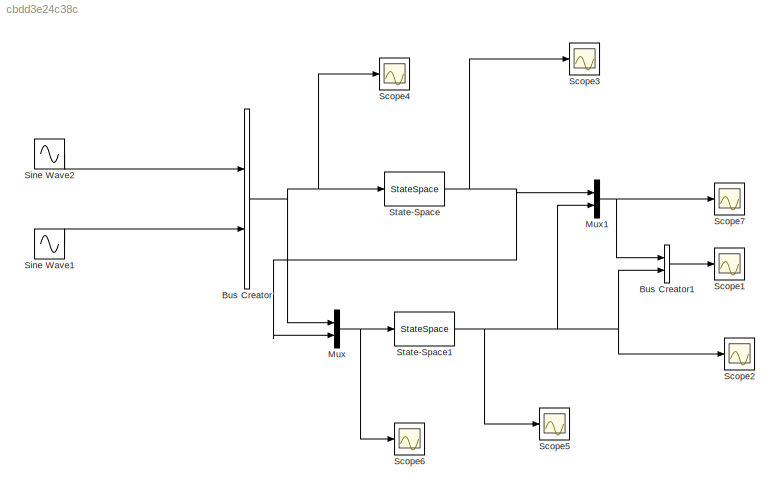
MODEL slx_cbdd3e24c38c
KIND model
BLOCK [BusCreator] Bus Creator
  DisplayOption = bar
  Inputs = 2
  Ports = [2, 1]
BLOCK [BusCreator] Bus Creator1
  DisplayOption = bar
  Inputs = 2
  Ports = [2, 1]
BLOCK [Mux] Mux
  DisplayOption = bar
  Inputs = 2
  Ports = [2, 1]
BLOCK [Mux] Mux1
  DisplayOption = bar
  Inputs = 2
  Ports = [2, 1]
BLOCK [Scope] Scope1
  Floating = off
  NumInputPorts = 1
  Ports = [1]
  SaveName = ScopeData2
  ShowLegends = off
BLOCK [Scope] Scope2
  Floating = off
  NumInputPorts = 1
  Ports = [1]
  SaveName = ScopeData3
  ShowLegends = off
BLOCK [Scope] Scope3
  Floating = off
  NumInputPorts = 1
  Ports = [1]
  SaveName = ScopeData4
  ShowLegends = off
BLOCK [Scope] Scope4
  Floating = off
  NumInputPorts = 1
  Ports = [1]
  SaveName = ScopeData5
  ShowLegends = off
BLOCK [Scope] Scope5
  Floating = off
  NumInputPorts = 1
  Ports = [1]
  ShowLegends = off
  ZoomMode = yonly
BLOCK [Scope] Scope6
  Floating = off
  NumInputPorts = 1
  Ports = [1]
  SaveName = ScopeData6
  ShowLegends = off
BLOCK [Scope] Scope7
  Floating = off
  NumInputPorts = 1
  Ports = [1]
  SaveName = ScopeData7
  ShowLegends = off
BLOCK [Sin] Sine Wave1
  Frequency = 5
  Phase = 0.5*pi
  Ports = [0, 1]
  SampleTime = 0
BLOCK [Sin] Sine Wave2
  Frequency = 5
  Ports = [0, 1]
  SampleTime = 0
BLOCK [StateSpace] State-Space
  A = [-110.2424 0 200.9966 0;0 -110.2424 0 200.9966;107.1489 0 -206.7995 0;0 107.1489 0 -206.7995]
  B = [253.4307 0;0 253.4307;-264.3194 0;0 -246.3194]
  C = [1 0 0 0;0 1 0 0]
  D = [0 0;0 0]
  Ports = [1, 1]
  X0 = [0 0 0 0]
BLOCK [StateSpace] State-Space1
  A = [-110.2424 0 200.9966 0;0 -110.2424 0 200.9966;107.1489 0 -206.7995 0;0 107.1489 0 -206.7995]-[-44.8158 -22.9369;52.4034 -97.3340;79.4732 -8.2236;-6.9857 129.4281]*[1 0 0 0;0 1 0 0]
  B = [[253.4307 0;0 253.4307;-264.3194 0;0 -246.3194]-[-44.8158 -22.9369;52.4034 -97.3340;79.4732 -8.2236;-6.9857 129.4281]*[0 0;0 0] [-44.8158 -22.9369;52.4034 -97.3340;79.4732 -8.2236;-6.9857 129.4281]]
  C = [1 0 0 0;0 1 0 0]
  D = [0 0 0 0;0 0 0 0]
  Ports = [1, 1]
  X0 = [0.51 0.5 0.5 0.5]
LINE Bus Creator1:1 -> Scope1:1
NET Bus Creator:1 -> Mux:1, Scope4:1, State-Space:1
NET Mux1:1 -> Bus Creator1:1, Scope7:1
NET Mux:1 -> Scope6:1, State-Space1:1
LINE Sine Wave1:1 -> Bus Creator:2
LINE Sine Wave2:1 -> Bus Creator:1
NET State-Space1:1 -> Bus Creator1:2, Mux1:2, Scope2:1, Scope5:1
NET State-Space:1 -> Mux1:1, Mux:2, Scope3:1
note: NET lines group one-source signal fan-out (src -> all destinations, sorted); 1:1 wires keep LINE
